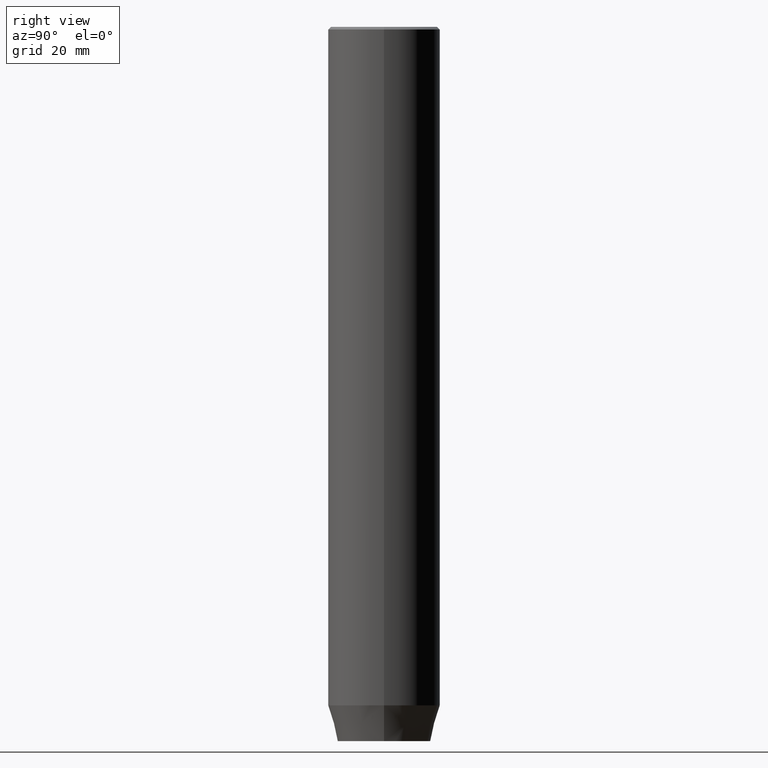
[diagram: clean part render]
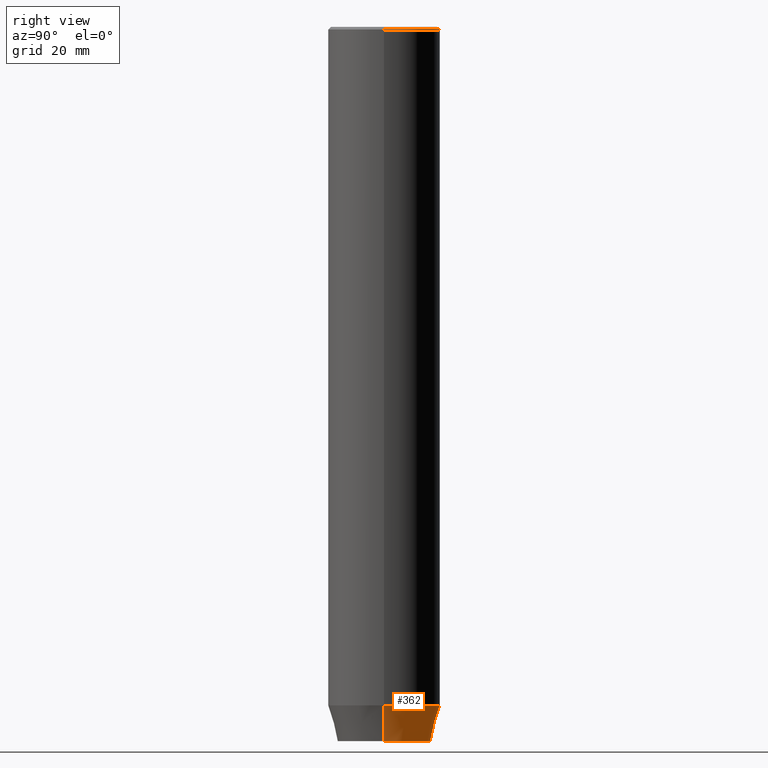
[diagram: same view with one face highlighted and labeled with its STEP entity id]
A machine part, right view. The second image highlights one B-rep face of the part: STEP entity #362.
In plain terms, the highlighted conical surface has half-angle 15 deg.
Its self-contained STEP definition (entity closure, byte-faithful):
#5 = DIRECTION ( 'NONE',  ( -0.000000000000000000, -0.000000000000000000, 1.000000000000000000 ) ) ;
#15 = CARTESIAN_POINT ( 'NONE',  ( 11.00000000000000000, 0.000000000000000000, -133.0000000000000000 ) ) ;
#19 = CARTESIAN_POINT ( 'NONE',  ( 0.000000000000000000, 0.000000000000000000, -133.0000000000000000 ) ) ;
#39 = CARTESIAN_POINT ( 'NONE',  ( 0.000000000000000000, 0.000000000000000000, -133.0000000000000000 ) ) ;
#44 = EDGE_CURVE ( 'NONE', #539, #162, #471, .T. ) ;
#48 = ORIENTED_EDGE ( 'NONE', *, *, #49, .F. ) ;
#49 = EDGE_CURVE ( 'NONE', #162, #497, #478, .T. ) ;
#60 = CARTESIAN_POINT ( 'NONE',  ( -11.00000000000000000, 1.347111479062088405E-15, -133.0000000000000000 ) ) ;
#93 = CONICAL_SURFACE ( 'NONE', #161, 11.00000000000000000, 0.2617993877991500740 ) ;
#98 = CARTESIAN_POINT ( 'NONE',  ( -9.124355652982133691, 1.232261386766375507E-15, -140.0000000000000000 ) ) ;
#135 = AXIS2_PLACEMENT_3D ( 'NONE', #19, #139, #293 ) ;
#139 = DIRECTION ( 'NONE',  ( -0.000000000000000000, -0.000000000000000000, 1.000000000000000000 ) ) ;
#147 = CARTESIAN_POINT ( 'NONE',  ( 11.00000000000000000, 0.000000000000000000, -133.0000000000000000 ) ) ;
#159 = CARTESIAN_POINT ( 'NONE',  ( -11.00000000000000000, 1.347111479062088405E-15, -133.0000000000000000 ) ) ;
#161 = AXIS2_PLACEMENT_3D ( 'NONE', #39, #213, #402 ) ;
#162 = VERTEX_POINT ( 'NONE', #147 ) ;
#191 = DIRECTION ( 'NONE',  ( 0.2588190451025213501, 0.000000000000000000, 0.9659258262890680902 ) ) ;
#213 = DIRECTION ( 'NONE',  ( -0.000000000000000000, -0.000000000000000000, 1.000000000000000000 ) ) ;
#226 = DIRECTION ( 'NONE',  ( 1.000000000000000000, 0.000000000000000000, 0.000000000000000000 ) ) ;
#237 = DIRECTION ( 'NONE',  ( -0.2588190451025213501, 3.169619151431772337E-17, 0.9659258262890680902 ) ) ;
#238 = EDGE_CURVE ( 'NONE', #489, #497, #475, .T. ) ;
#253 = FACE_OUTER_BOUND ( 'NONE', #364, .T. ) ;
#293 = DIRECTION ( 'NONE',  ( 1.000000000000000000, 0.000000000000000000, 0.000000000000000000 ) ) ;
#308 = ORIENTED_EDGE ( 'NONE', *, *, #44, .F. ) ;
#327 = EDGE_CURVE ( 'NONE', #539, #489, #524, .T. ) ;
#335 = ORIENTED_EDGE ( 'NONE', *, *, #327, .T. ) ;
#362 = ADVANCED_FACE ( 'NONE', ( #253 ), #93, .T. ) ;
#364 = EDGE_LOOP ( 'NONE', ( #335, #455, #48, #308 ) ) ;
#402 = DIRECTION ( 'NONE',  ( 1.000000000000000000, 0.000000000000000000, 0.000000000000000000 ) ) ;
#410 = VECTOR ( 'NONE', #191, 1000.000000000000000 ) ;
#455 = ORIENTED_EDGE ( 'NONE', *, *, #238, .T. ) ;
#470 = CARTESIAN_POINT ( 'NONE',  ( 0.000000000000000000, 0.000000000000000000, -140.0000000000000000 ) ) ;
#471 = LINE ( 'NONE', #15, #410 ) ;
#475 = LINE ( 'NONE', #60, #506 ) ;
#478 = CIRCLE ( 'NONE', #135, 11.00000000000000000 ) ;
#489 = VERTEX_POINT ( 'NONE', #98 ) ;
#497 = VERTEX_POINT ( 'NONE', #159 ) ;
#504 = CARTESIAN_POINT ( 'NONE',  ( 9.124355652982133691, 0.000000000000000000, -140.0000000000000000 ) ) ;
#506 = VECTOR ( 'NONE', #237, 1000.000000000000000 ) ;
#516 = AXIS2_PLACEMENT_3D ( 'NONE', #470, #5, #226 ) ;
#524 = CIRCLE ( 'NONE', #516, 9.124355652982133691 ) ;
#539 = VERTEX_POINT ( 'NONE', #504 ) ;